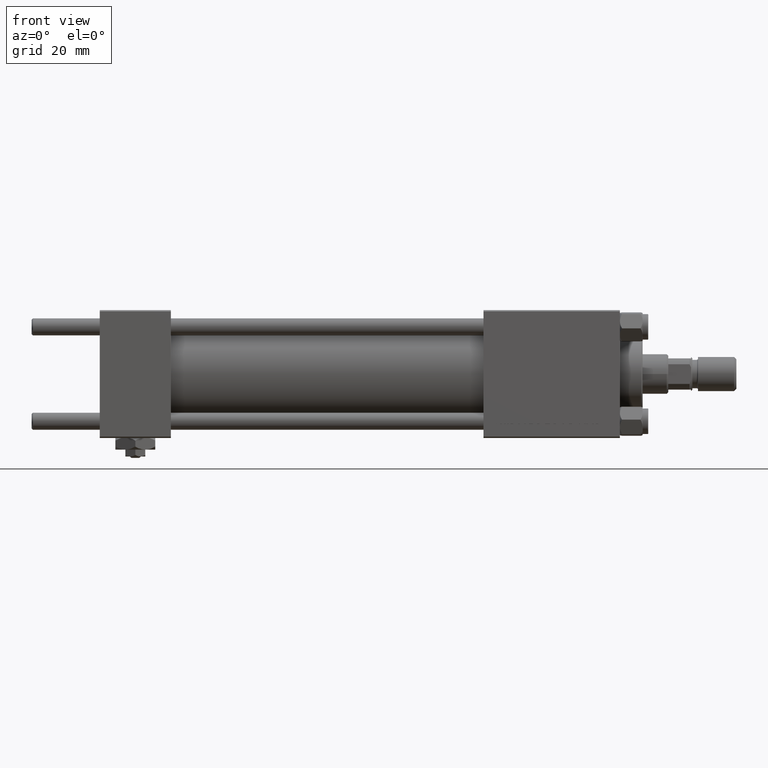
[diagram: clean part render]
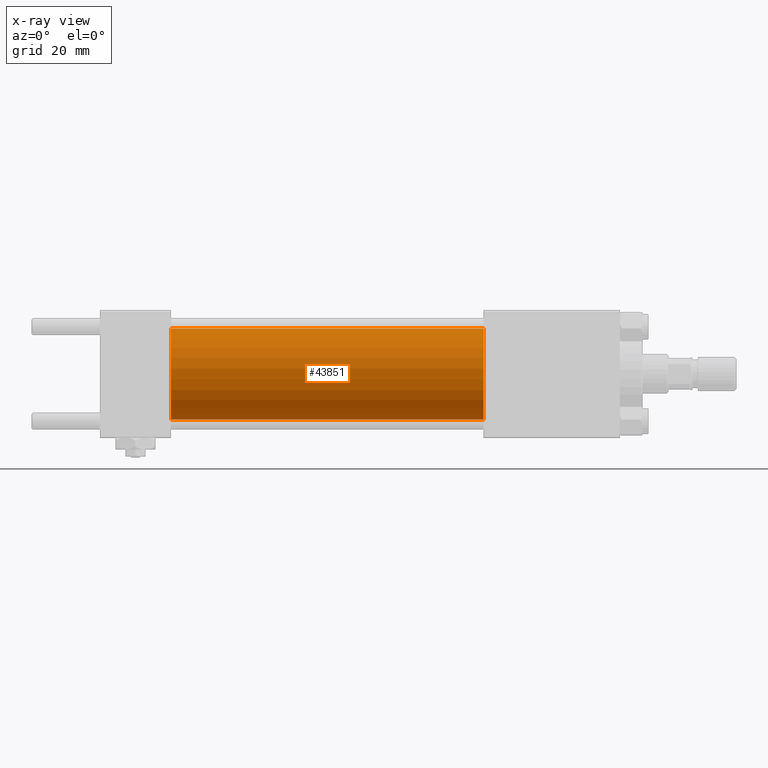
[diagram: x-ray — body ghosted, one internal face saturated and labeled with its STEP entity id]
A machine part, front view, then the same camera in x-ray: the body is ghosted and one INTERNAL B-rep face — a face not visible from any outside direction — is saturated and labeled: STEP entity #43851.
In plain terms, the highlighted cylindrical surface (partial cylindrical patch) has radius 16 mm, axis along (-1, -0, -0).
Its self-contained STEP definition (entity closure, byte-faithful):
#1380 = FACE_OUTER_BOUND ( 'NONE', #29362, .T. ) ;
#3812 = AXIS2_PLACEMENT_3D ( 'NONE', #6657, #38374, #34676 ) ;
#5828 = AXIS2_PLACEMENT_3D ( 'NONE', #41432, #12648, #40906 ) ;
#6418 = DIRECTION ( 'NONE',  ( -1.000000000000000000, -0.000000000000000000, -0.000000000000000000 ) ) ;
#6657 = CARTESIAN_POINT ( 'NONE',  ( 135.0000000000000000, 0.000000000000000000, 0.000000000000000000 ) ) ;
#6925 = LINE ( 'NONE', #23065, #43563 ) ;
#7337 = VERTEX_POINT ( 'NONE', #45811 ) ;
#12648 = DIRECTION ( 'NONE',  ( 1.000000000000000000, 0.000000000000000000, 0.000000000000000000 ) ) ;
#12959 = CARTESIAN_POINT ( 'NONE',  ( 135.0000000000000000, 1.959434878635765131E-15, -16.00000000000000000 ) ) ;
#13515 = EDGE_CURVE ( 'NONE', #33739, #7337, #6925, .T. ) ;
#13952 = CIRCLE ( 'NONE', #3812, 16.00000000000000000 ) ;
#17187 = DIRECTION ( 'NONE',  ( -1.000000000000000000, -0.000000000000000000, -0.000000000000000000 ) ) ;
#17507 = CARTESIAN_POINT ( 'NONE',  ( 135.0000000000000000, 0.000000000000000000, 0.000000000000000000 ) ) ;
#19307 = ORIENTED_EDGE ( 'NONE', *, *, #19684, .T. ) ;
#19433 = ORIENTED_EDGE ( 'NONE', *, *, #39131, .F. ) ;
#19684 = EDGE_CURVE ( 'NONE', #30806, #47854, #41235, .T. ) ;
#23065 = CARTESIAN_POINT ( 'NONE',  ( 135.0000000000000000, 0.000000000000000000, 16.00000000000000000 ) ) ;
#27923 = ORIENTED_EDGE ( 'NONE', *, *, #13515, .F. ) ;
#29362 = EDGE_LOOP ( 'NONE', ( #50069, #19307, #19433, #27923 ) ) ;
#30426 = EDGE_CURVE ( 'NONE', #33739, #30806, #13952, .T. ) ;
#30806 = VERTEX_POINT ( 'NONE', #40046 ) ;
#33633 = DIRECTION ( 'NONE',  ( 0.000000000000000000, 0.000000000000000000, 1.000000000000000000 ) ) ;
#33739 = VERTEX_POINT ( 'NONE', #33741 ) ;
#33741 = CARTESIAN_POINT ( 'NONE',  ( 135.0000000000000000, 0.000000000000000000, 16.00000000000000000 ) ) ;
#34676 = DIRECTION ( 'NONE',  ( 0.000000000000000000, 0.000000000000000000, -1.000000000000000000 ) ) ;
#37854 = CYLINDRICAL_SURFACE ( 'NONE', #39636, 16.00000000000000000 ) ;
#38374 = DIRECTION ( 'NONE',  ( 1.000000000000000000, 0.000000000000000000, 0.000000000000000000 ) ) ;
#39131 = EDGE_CURVE ( 'NONE', #7337, #47854, #39568, .T. ) ;
#39568 = CIRCLE ( 'NONE', #5828, 16.00000000000000000 ) ;
#39636 = AXIS2_PLACEMENT_3D ( 'NONE', #17507, #48946, #33633 ) ;
#40046 = CARTESIAN_POINT ( 'NONE',  ( 135.0000000000000000, 1.959434878635765131E-15, -16.00000000000000000 ) ) ;
#40906 = DIRECTION ( 'NONE',  ( 0.000000000000000000, 0.000000000000000000, -1.000000000000000000 ) ) ;
#41235 = LINE ( 'NONE', #12959, #43886 ) ;
#41432 = CARTESIAN_POINT ( 'NONE',  ( 25.00000000000000000, 0.000000000000000000, 0.000000000000000000 ) ) ;
#43563 = VECTOR ( 'NONE', #6418, 1000.000000000000000 ) ;
#43851 = ADVANCED_FACE ( 'NONE', ( #1380 ), #37854, .F. ) ;
#43886 = VECTOR ( 'NONE', #17187, 1000.000000000000000 ) ;
#45026 = CARTESIAN_POINT ( 'NONE',  ( 25.00000000000000000, 1.959434878635765131E-15, -16.00000000000000000 ) ) ;
#45811 = CARTESIAN_POINT ( 'NONE',  ( 25.00000000000000000, 0.000000000000000000, 16.00000000000000000 ) ) ;
#47854 = VERTEX_POINT ( 'NONE', #45026 ) ;
#48946 = DIRECTION ( 'NONE',  ( -1.000000000000000000, -0.000000000000000000, -0.000000000000000000 ) ) ;
#50069 = ORIENTED_EDGE ( 'NONE', *, *, #30426, .T. ) ;